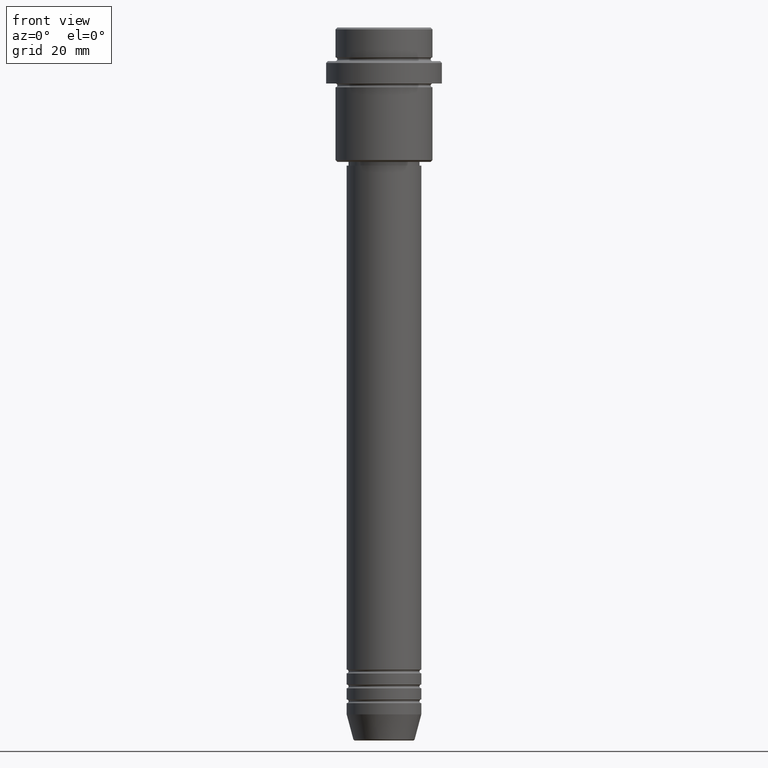
[diagram: clean part render]
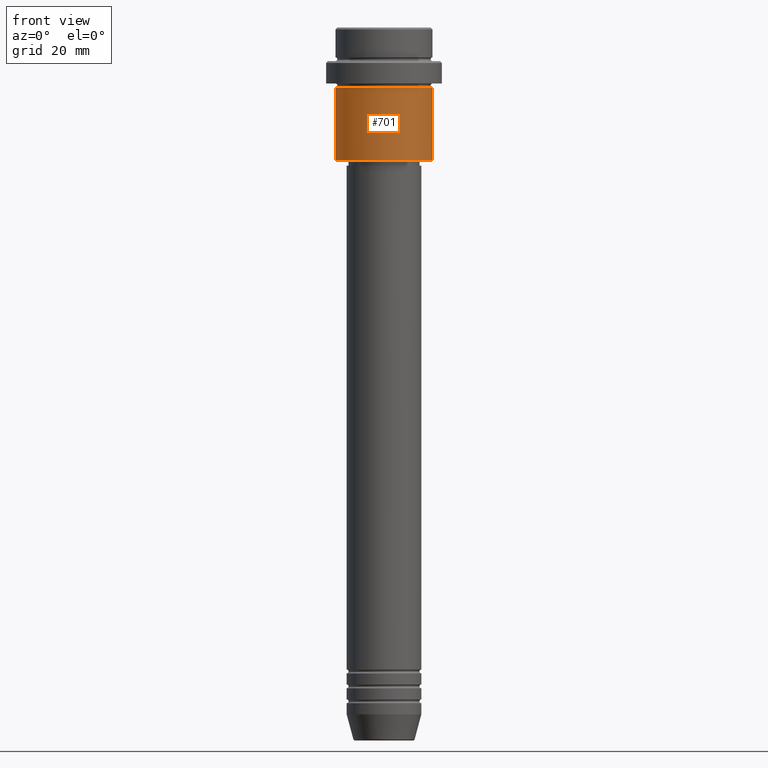
[diagram: same view with one face highlighted and labeled with its STEP entity id]
A machine part, front view. The second image highlights one B-rep face of the part: STEP entity #701.
In plain terms, the highlighted cylindrical surface (partial cylindrical patch) has radius 13 mm, axis along (-0, -0, 1).
Its self-contained STEP definition (entity closure, byte-faithful):
#6 = VERTEX_POINT ( 'NONE', #34 ) ;
#29 = DIRECTION ( 'NONE',  ( 1.000000000000000000, 0.000000000000000000, 0.000000000000000000 ) ) ;
#34 = CARTESIAN_POINT ( 'NONE',  ( 13.00000000000000000, 0.000000000000000000, -16.00000000000000000 ) ) ;
#67 = DIRECTION ( 'NONE',  ( 1.000000000000000000, 0.000000000000000000, 0.000000000000000000 ) ) ;
#69 = CARTESIAN_POINT ( 'NONE',  ( -13.00000000000000000, 1.592040838891559095E-15, 0.000000000000000000 ) ) ;
#120 = FACE_OUTER_BOUND ( 'NONE', #309, .T. ) ;
#144 = CARTESIAN_POINT ( 'NONE',  ( 13.00000000000000000, 0.000000000000000000, -35.50000000000003553 ) ) ;
#167 = CARTESIAN_POINT ( 'NONE',  ( 0.000000000000000000, 0.000000000000000000, -16.00000000000000000 ) ) ;
#186 = CARTESIAN_POINT ( 'NONE',  ( 0.000000000000000000, 0.000000000000000000, -35.50000000000003553 ) ) ;
#199 = CIRCLE ( 'NONE', #1188, 13.00000000000000000 ) ;
#223 = CIRCLE ( 'NONE', #406, 13.00000000000000000 ) ;
#299 = DIRECTION ( 'NONE',  ( -0.000000000000000000, -0.000000000000000000, 1.000000000000000000 ) ) ;
#304 = DIRECTION ( 'NONE',  ( -0.000000000000000000, -0.000000000000000000, 1.000000000000000000 ) ) ;
#309 = EDGE_LOOP ( 'NONE', ( #1327, #789, #742, #1219 ) ) ;
#406 = AXIS2_PLACEMENT_3D ( 'NONE', #167, #1050, #67 ) ;
#450 = CARTESIAN_POINT ( 'NONE',  ( 0.000000000000000000, 0.000000000000000000, 0.000000000000000000 ) ) ;
#452 = VECTOR ( 'NONE', #304, 1000.000000000000000 ) ;
#487 = LINE ( 'NONE', #925, #452 ) ;
#496 = CARTESIAN_POINT ( 'NONE',  ( -13.00000000000000000, 1.592040838891559095E-15, -35.50000000000003553 ) ) ;
#536 = LINE ( 'NONE', #69, #590 ) ;
#575 = CYLINDRICAL_SURFACE ( 'NONE', #706, 13.00000000000000000 ) ;
#590 = VECTOR ( 'NONE', #836, 1000.000000000000000 ) ;
#603 = EDGE_CURVE ( 'NONE', #1140, #1416, #536, .T. ) ;
#675 = DIRECTION ( 'NONE',  ( -0.000000000000000000, -0.000000000000000000, 1.000000000000000000 ) ) ;
#685 = CARTESIAN_POINT ( 'NONE',  ( -13.00000000000000000, 1.592040838891559095E-15, -16.00000000000000000 ) ) ;
#701 = ADVANCED_FACE ( 'NONE', ( #120 ), #575, .T. ) ;
#706 = AXIS2_PLACEMENT_3D ( 'NONE', #450, #675, #29 ) ;
#742 = ORIENTED_EDGE ( 'NONE', *, *, #945, .T. ) ;
#789 = ORIENTED_EDGE ( 'NONE', *, *, #1054, .T. ) ;
#836 = DIRECTION ( 'NONE',  ( -0.000000000000000000, -0.000000000000000000, 1.000000000000000000 ) ) ;
#853 = EDGE_CURVE ( 'NONE', #1416, #6, #223, .T. ) ;
#879 = VERTEX_POINT ( 'NONE', #144 ) ;
#925 = CARTESIAN_POINT ( 'NONE',  ( 13.00000000000000000, 0.000000000000000000, 0.000000000000000000 ) ) ;
#945 = EDGE_CURVE ( 'NONE', #879, #6, #487, .T. ) ;
#1050 = DIRECTION ( 'NONE',  ( -0.000000000000000000, -0.000000000000000000, 1.000000000000000000 ) ) ;
#1054 = EDGE_CURVE ( 'NONE', #1140, #879, #199, .T. ) ;
#1140 = VERTEX_POINT ( 'NONE', #496 ) ;
#1188 = AXIS2_PLACEMENT_3D ( 'NONE', #186, #299, #1391 ) ;
#1219 = ORIENTED_EDGE ( 'NONE', *, *, #853, .F. ) ;
#1327 = ORIENTED_EDGE ( 'NONE', *, *, #603, .F. ) ;
#1391 = DIRECTION ( 'NONE',  ( -1.000000000000000000, 0.000000000000000000, 0.000000000000000000 ) ) ;
#1416 = VERTEX_POINT ( 'NONE', #685 ) ;